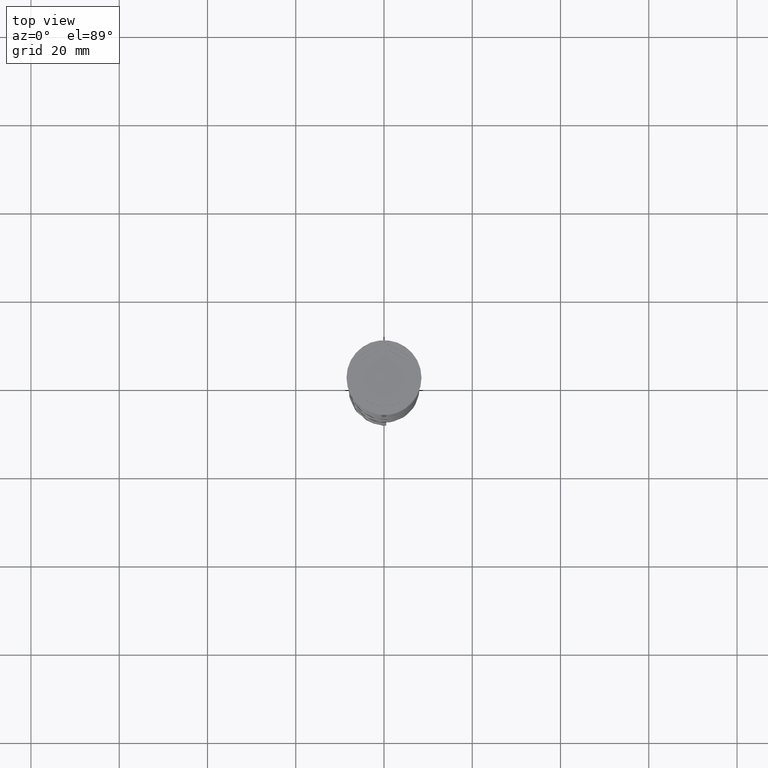
[diagram: clean part render]
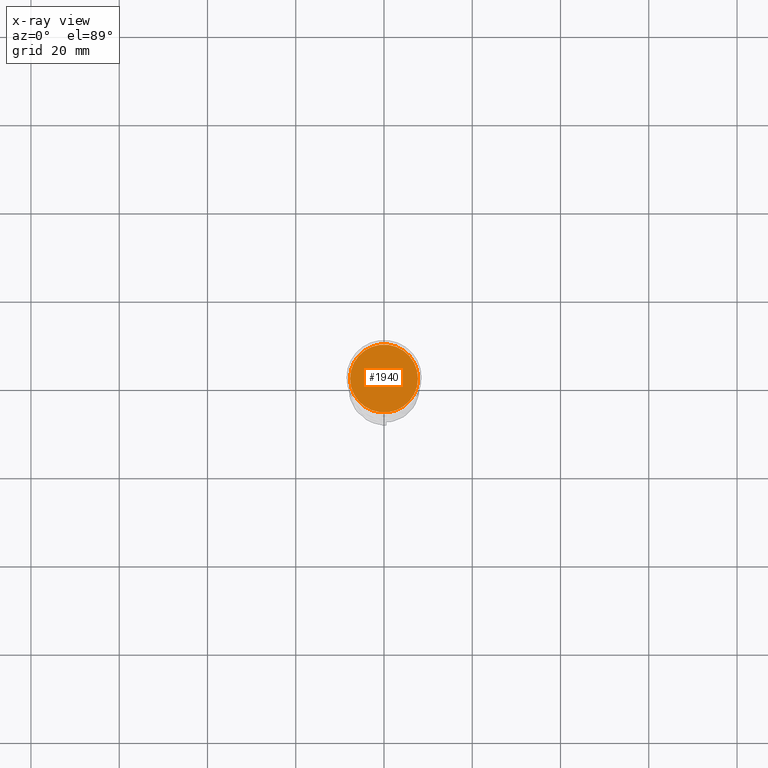
[diagram: x-ray — body ghosted, one internal face saturated and labeled with its STEP entity id]
A machine part, top view, then the same camera in x-ray: the body is ghosted and one INTERNAL B-rep face — a face not visible from any outside direction — is saturated and labeled: STEP entity #1940.
In plain terms, the highlighted planar face has unit normal (0, 0, -1).
Its self-contained STEP definition (entity closure, byte-faithful):
#219 = AXIS2_PLACEMENT_3D ( 'NONE', #485, #2759, #1333 ) ;
#485 = CARTESIAN_POINT ( 'NONE',  ( 0.000000000000000000, 0.000000000000000000, -12.00000000000000000 ) ) ;
#636 = EDGE_CURVE ( 'NONE', #910, #3270, #3647, .T. ) ;
#842 = DIRECTION ( 'NONE',  ( -1.000000000000000000, 0.000000000000000000, 0.000000000000000000 ) ) ;
#910 = VERTEX_POINT ( 'NONE', #2358 ) ;
#939 = AXIS2_PLACEMENT_3D ( 'NONE', #3407, #1128, #1978 ) ;
#1128 = DIRECTION ( 'NONE',  ( 0.000000000000000000, 0.000000000000000000, -1.000000000000000000 ) ) ;
#1282 = EDGE_LOOP ( 'NONE', ( #1962, #2975 ) ) ;
#1333 = DIRECTION ( 'NONE',  ( -1.000000000000000000, 0.000000000000000000, 0.000000000000000000 ) ) ;
#1940 = ADVANCED_FACE ( 'NONE', ( #2312 ), #2298, .F. ) ;
#1962 = ORIENTED_EDGE ( 'NONE', *, *, #2529, .T. ) ;
#1978 = DIRECTION ( 'NONE',  ( -1.000000000000000000, 0.000000000000000000, -0.000000000000000000 ) ) ;
#1997 = DIRECTION ( 'NONE',  ( -0.000000000000000000, -0.000000000000000000, 1.000000000000000000 ) ) ;
#2298 = PLANE ( 'NONE',  #939 ) ;
#2312 = FACE_OUTER_BOUND ( 'NONE', #1282, .T. ) ;
#2358 = CARTESIAN_POINT ( 'NONE',  ( 7.700000000000001954, 9.613477373306725302E-16, -12.00000000000000000 ) ) ;
#2391 = CIRCLE ( 'NONE', #219, 7.700000000000001954 ) ;
#2529 = EDGE_CURVE ( 'NONE', #3270, #910, #2391, .T. ) ;
#2675 = AXIS2_PLACEMENT_3D ( 'NONE', #3429, #1997, #842 ) ;
#2759 = DIRECTION ( 'NONE',  ( -0.000000000000000000, -0.000000000000000000, 1.000000000000000000 ) ) ;
#2797 = CARTESIAN_POINT ( 'NONE',  ( -7.700000000000001954, 0.000000000000000000, -12.00000000000000000 ) ) ;
#2975 = ORIENTED_EDGE ( 'NONE', *, *, #636, .T. ) ;
#3270 = VERTEX_POINT ( 'NONE', #2797 ) ;
#3407 = CARTESIAN_POINT ( 'NONE',  ( 0.000000000000000000, 0.000000000000000000, -12.00000000000000000 ) ) ;
#3429 = CARTESIAN_POINT ( 'NONE',  ( 0.000000000000000000, 0.000000000000000000, -12.00000000000000000 ) ) ;
#3647 = CIRCLE ( 'NONE', #2675, 7.700000000000001954 ) ;